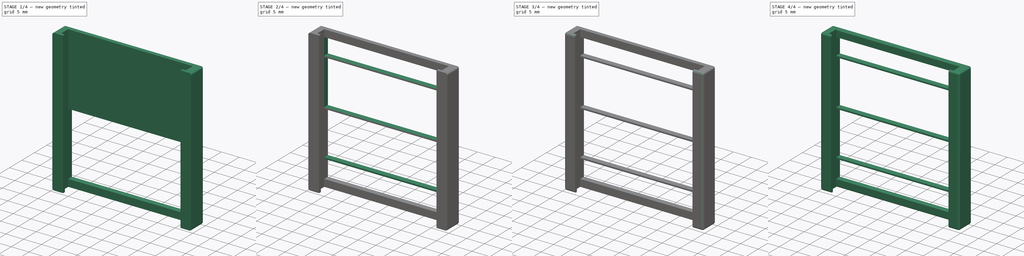
[diagram: build sequence overview — one tinted view per stage of 4, left to right]
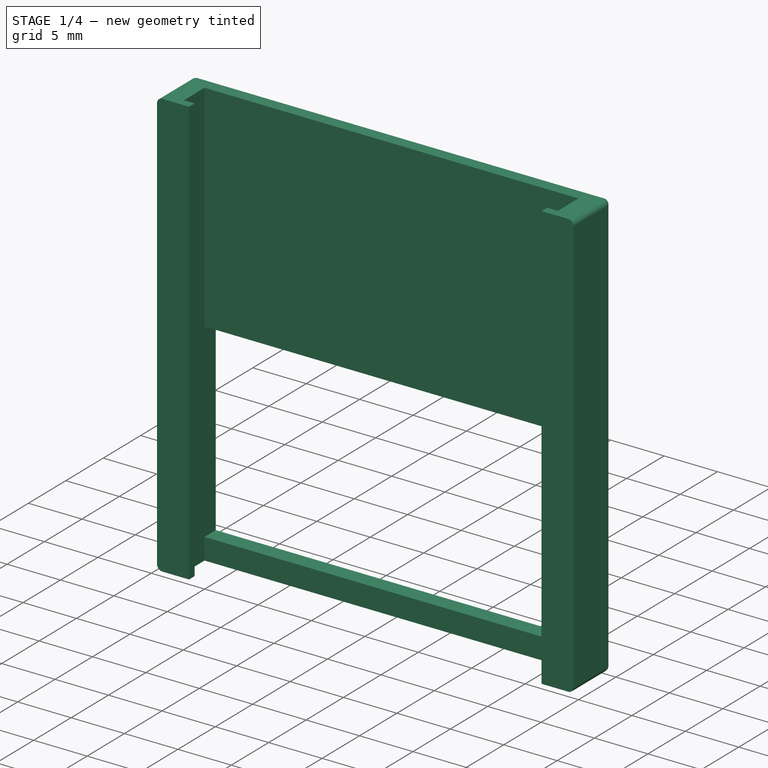
[diagram: stage 1 of 4 — iso view after this stage's code; geometry added in this stage tinted green]
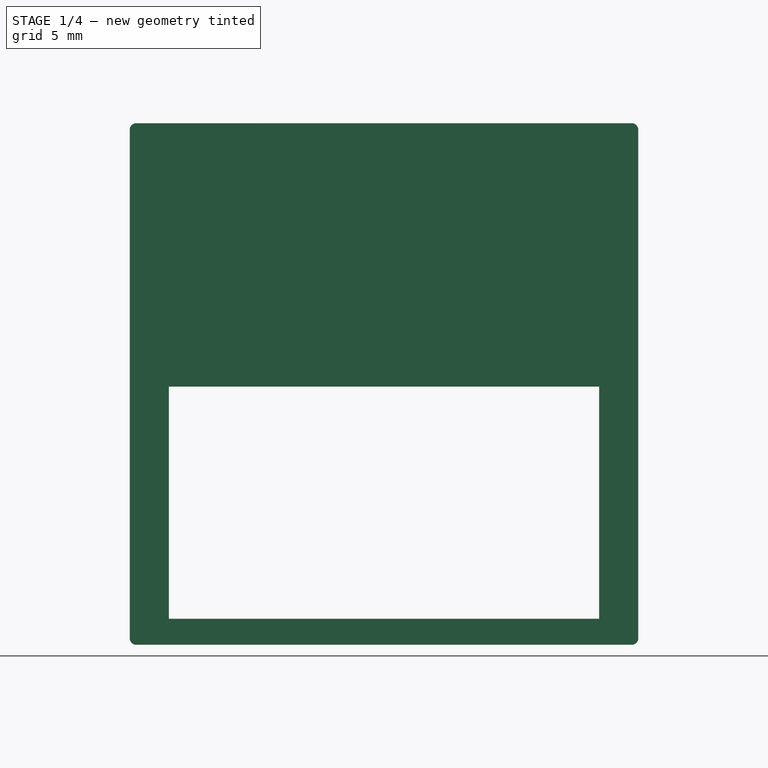
[diagram: stage 1 of 4 — front view after this stage's code; geometry added in this stage tinted green]
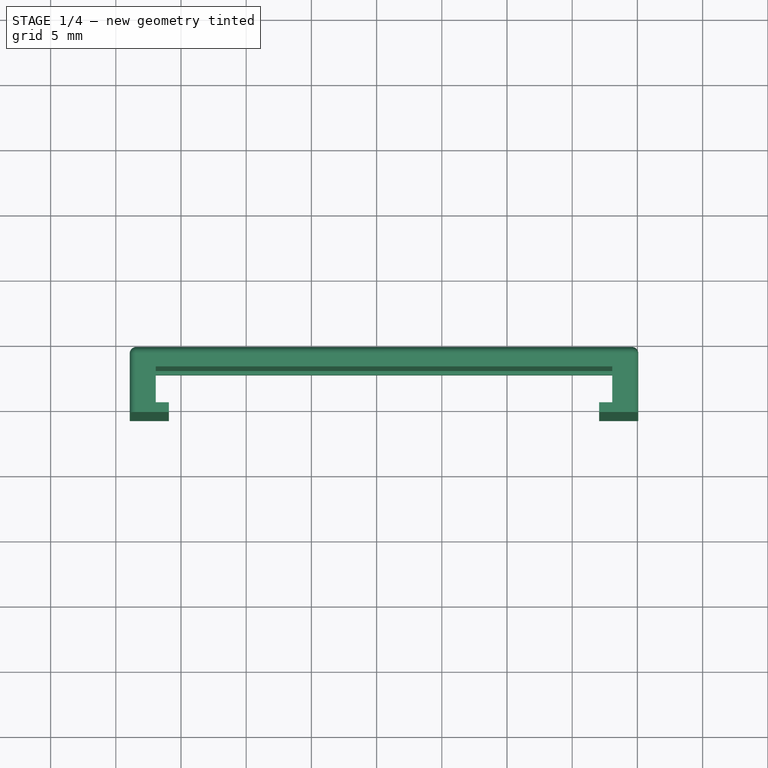
[diagram: stage 1 of 4 — top view after this stage's code; geometry added in this stage tinted green]
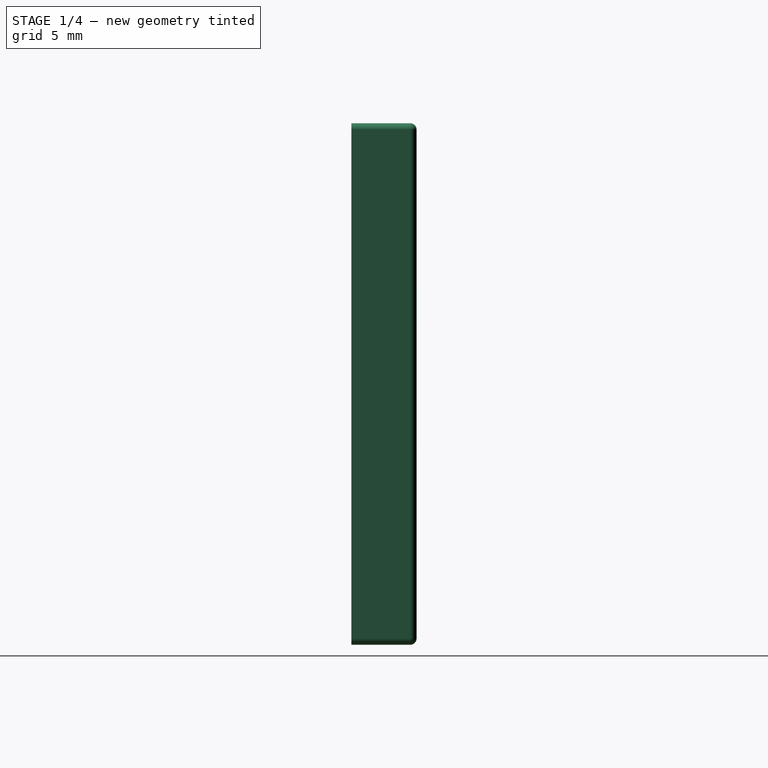
[diagram: stage 1 of 4 — right view after this stage's code; geometry added in this stage tinted green]
FCSTD DOCUMENT  (FreeCAD 1.1R)
Label: cursor
License: All rights reserved
LicenseURL: https://en.wikipedia.org/wiki/All_rights_reserved
objects: PartDesign::Chamfer×5, PartDesign::Fillet×2, PartDesign::SubtractiveBox×2, PartDesign::AdditiveBox×2, App::Point×1, Sketcher::SketchObject×1, PartDesign::Pad×1, PartDesign::Body×1
note: 39 computed .brp shape members not serialized (recipe doc carries the construction recipe); baked Part::Feature solids carry a one-line shape summary decoded from their .brp

FEATURE [App::Point] Origin003
  Role = Origin
FEATURE [Sketcher::SketchObject] Sketch001
  ArcFitTolerance = 1e-06
  AttachmentSupport = -> [Origin002]
  ExternalTypes = [0]
  FullyConstrained = false
  MakeInternals = false
  MapMode = 5
  sketch-geometry (12):
    g0: LineSegment StartX=-18.9329 StartY=4.25 StartZ=0 EndX=20.0671 EndY=4.25 EndZ=0
    g1: LineSegment StartX=20.0671 StartY=4.25 StartZ=0 EndX=20.0671 EndY=-0.75 EndZ=0
    g2: LineSegment StartX=20.0671 StartY=-0.75 StartZ=0 EndX=17.0671 EndY=-0.75 EndZ=0
    g3: LineSegment StartX=17.0671 StartY=-0.75 StartZ=0 EndX=17.0671 EndY=0 EndZ=0
    g4: LineSegment StartX=17.0671 StartY=0 StartZ=0 EndX=18.0671 EndY=0 EndZ=0
    g5: LineSegment StartX=18.0671 StartY=0 StartZ=0 EndX=18.0671 EndY=2.75 EndZ=0
    g6: LineSegment StartX=18.0671 StartY=2.75 StartZ=0 EndX=-16.9329 EndY=2.75 EndZ=0
    g7: LineSegment StartX=-16.9329 StartY=2.75 StartZ=0 EndX=-16.9329 EndY=0 EndZ=0
    g8: LineSegment StartX=-16.9329 StartY=0 StartZ=0 EndX=-15.9329 EndY=0 EndZ=0
    g9: LineSegment StartX=-15.9329 StartY=0 StartZ=0 EndX=-15.9329 EndY=-0.75 EndZ=0
    g10: LineSegment StartX=-15.9329 StartY=-0.75 StartZ=0 EndX=-18.9329 EndY=-0.75 EndZ=0
    g11: LineSegment StartX=-18.9329 StartY=-0.75 StartZ=0 EndX=-18.9329 EndY=4.25 EndZ=0
  constraints (35):
    c: Horizontal(g0)
    c: Coincident(g0,g1)
    c: Vertical(g1)
    c: Coincident(g1,g2)
    c: Horizontal(g2)
    c: Coincident(g2,g3)
    c: PointOnObject(g3,g-1)
    c: Vertical(g3)
    c: Coincident(g3,g4)
    c: PointOnObject(g4,g-1)
    c: Coincident(g4,g5)
    c: Vertical(g5)
    c: Coincident(g5,g6)
    c: Horizontal(g6)
    c: Coincident(g6,g7)
    c: PointOnObject(g7,g-1)
    c: Coincident(g7,g8)
    c: PointOnObject(g8,g-1)
    c: Coincident(g8,g9)
    c: Vertical(g9)
    c: Coincident(g9,g10)
    c: Horizontal(g10)
    c: Coincident(g10,g11)
    c: Coincident(g11,g0)
    c: Vertical(g11)
    c: DistanceX(g0,g0) = 39
    c: DistanceX(g6,g6) = 35
    c: Perpendicular(g6,g7)
    c: DistanceX(g9,g2) = 33
    c: Distance(g11,g7) = 2
    c: DistanceX(g2,g1) = 3
    c: DistanceY(g1,g0) = 5
    c: Distance(g6,g0) = 1.5
    c: DistanceY(g11,g11) = 5
    c: Distance(g9,g9) = 0.75
FEATURE [PartDesign::Pad] Pad001
  Direction = (0,0,1)
  Length = 40
  Length2 = 10
  Profile = -> Sketch001
  ReferenceAxis = -> Sketch001 [N_Axis]
  Refine = true
  Suppressed = false
  Type = 0
FEATURE [PartDesign::Fillet] Fillet
  Base = -> Pad001 [Edge2,Edge1,Edge3,Edge4,Vertex1,Edge35,Edge6,Edge7,Edge36]
  BaseFeature = -> Pad001
  Radius = 0.5
  Refine = true
  SupportTransform = false
  Suppressed = false
  UseAllEdges = false
  expr: Radius = 0.5 mm
FEATURE [PartDesign::SubtractiveBox] Box004
  AttacherType = Attacher::AttachEngine3D
  AttachmentOffset = pos=(0,0,2) rot=(0,0,1;0rad)
  AttachmentSupport = -> [Fillet]
  BaseFeature = -> Fillet
  Height = 17.8
  Length = 35
  MapMode = 1
  Placement = pos=(-16.9329,2.75,2) rot=(0,0,1;0rad)
  Refine = true
  Suppressed = false
  Width = 10
  expr: Height = 17.8 mm
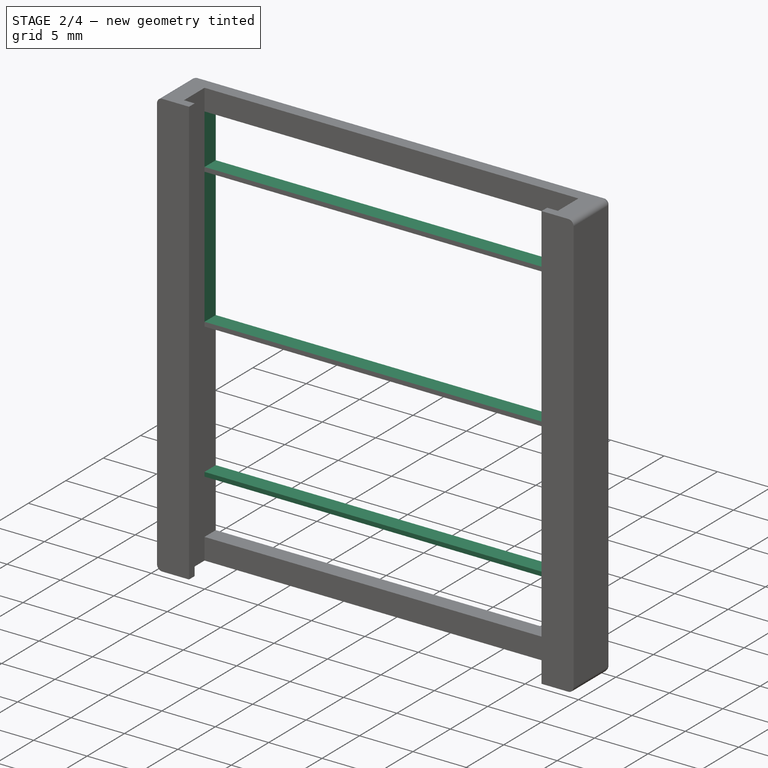
[diagram: stage 2 of 4 — iso view after this stage's code; geometry added in this stage tinted green]
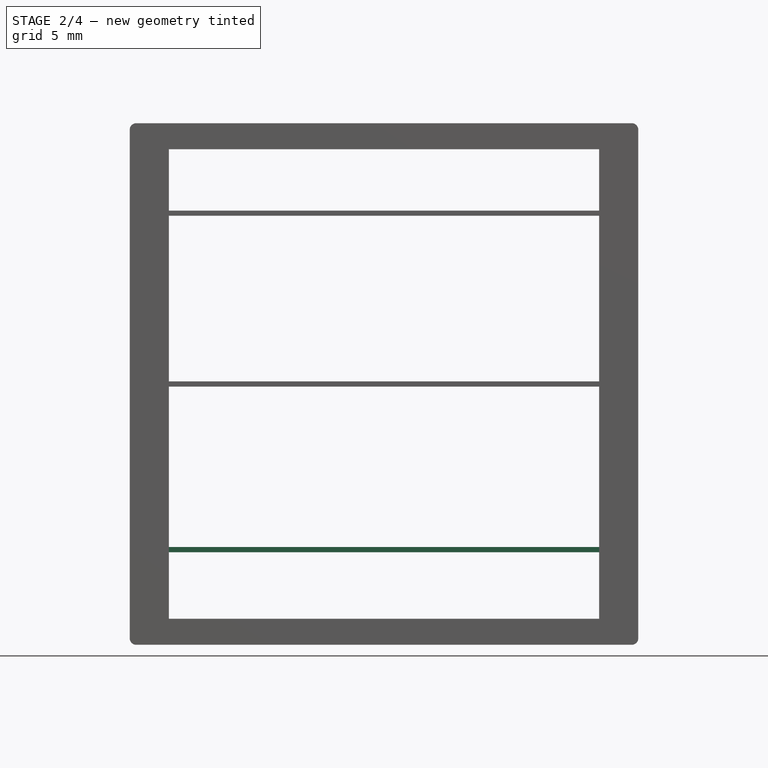
[diagram: stage 2 of 4 — front view after this stage's code; geometry added in this stage tinted green]
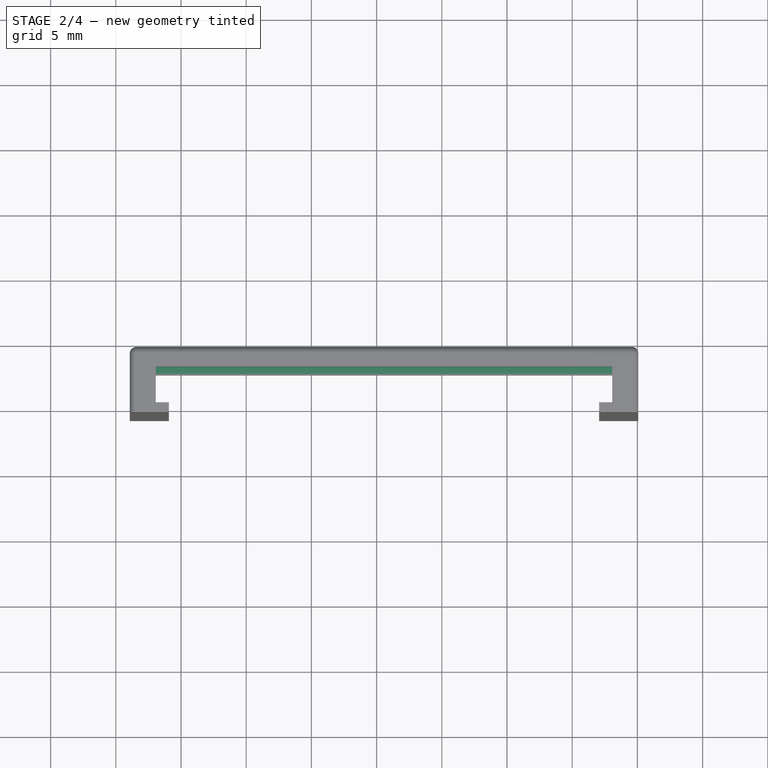
[diagram: stage 2 of 4 — top view after this stage's code; geometry added in this stage tinted green]
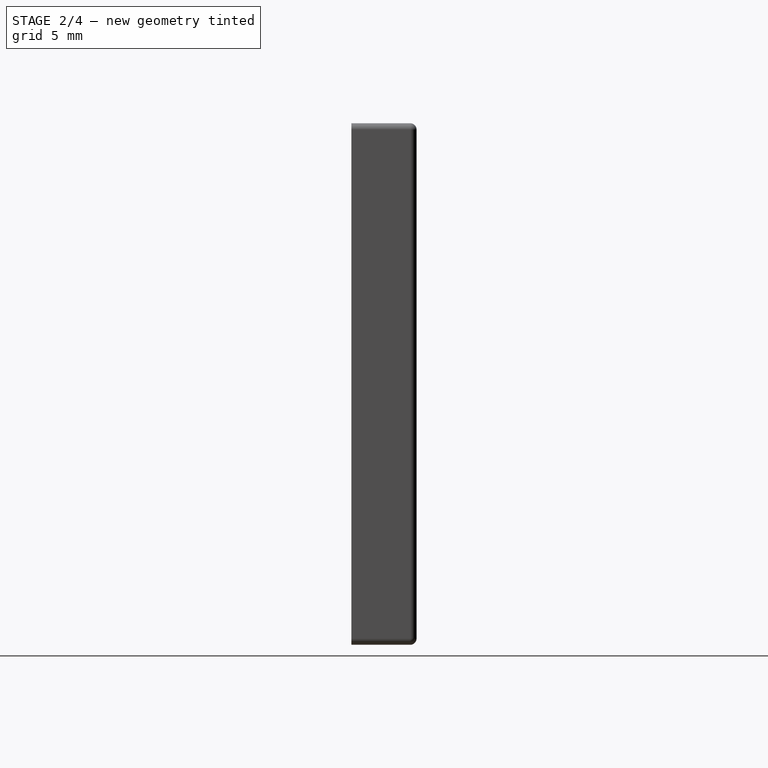
[diagram: stage 2 of 4 — right view after this stage's code; geometry added in this stage tinted green]
FEATURE [PartDesign::SubtractiveBox] Box005
  AttacherType = Attacher::AttachEngine3D
  AttachmentOffset = pos=(0,0,0.4) rot=(0,0,1;0rad)
  AttachmentSupport = -> [Box004]
  BaseFeature = -> Box004
  Height = 10
  Length = 35
  MapMode = 1
  Placement = pos=(18.0671,2.75,20.2) rot=(0,0.707107,0.707107;3.14159rad)
  Refine = true
  Suppressed = false
  Width = 17.8
  expr: .AttachmentOffset.Base.z = 0.4 mm
  expr: Width = 17.8 mm
FEATURE [PartDesign::AdditiveBox] Box006
  AttacherType = Attacher::AttachEngine3D
  AttachmentOffset = pos=(0,0,-12.7) rot=(0,0,1;0rad)
  AttachmentSupport = -> [Box005]
  BaseFeature = -> Box005
  Height = 0.4
  Length = 35
  MapMode = 1
  Placement = pos=(-16.9329,2.75,7.1) rot=(0,0,1;0rad)
  Refine = true
  Suppressed = false
  Width = 1.5
  expr: .AttachmentOffset.Base.z = -12.7 mm
  expr: Height = 0.4 mm
  expr: Width = 1.5 mm
FEATURE [PartDesign::AdditiveBox] Box007
  AttacherType = Attacher::AttachEngine3D
  AttachmentOffset = pos=(0,0,12.7) rot=(0,0,1;0rad)
  AttachmentSupport = -> [Box006]
  BaseFeature = -> Box006
  Height = 0.4
  Length = 35
  MapMode = 1
  Placement = pos=(-16.9329,2.75,32.9) rot=(0,0,1;0rad)
  Refine = true
  Suppressed = false
  Width = 1.5
  expr: .AttachmentOffset.Base.z = 12.7 mm
  expr: Height = 0.4 mm
  expr: Width = 1.5 mm
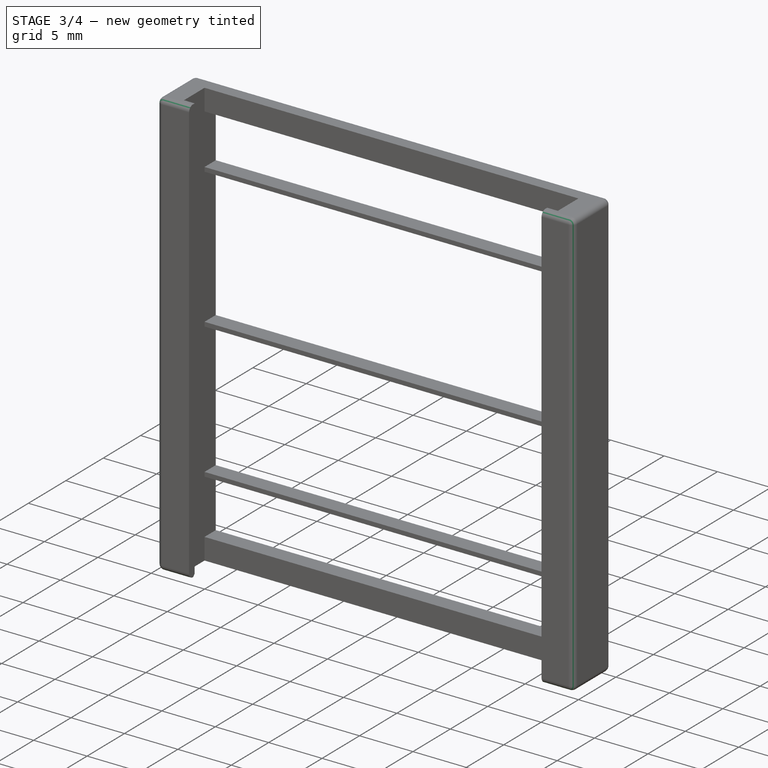
[diagram: stage 3 of 4 — iso view after this stage's code; geometry added in this stage tinted green]
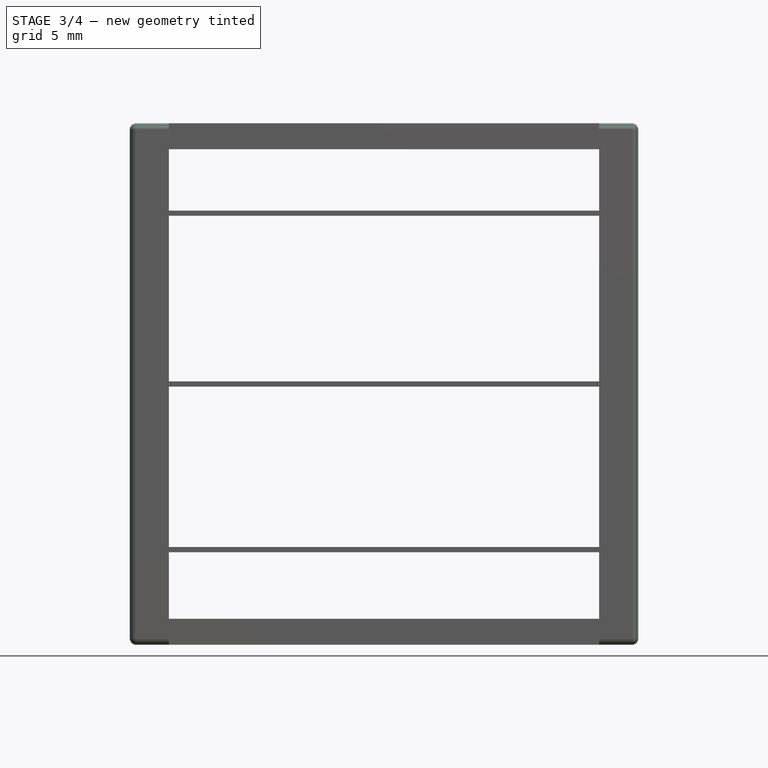
[diagram: stage 3 of 4 — front view after this stage's code; geometry added in this stage tinted green]
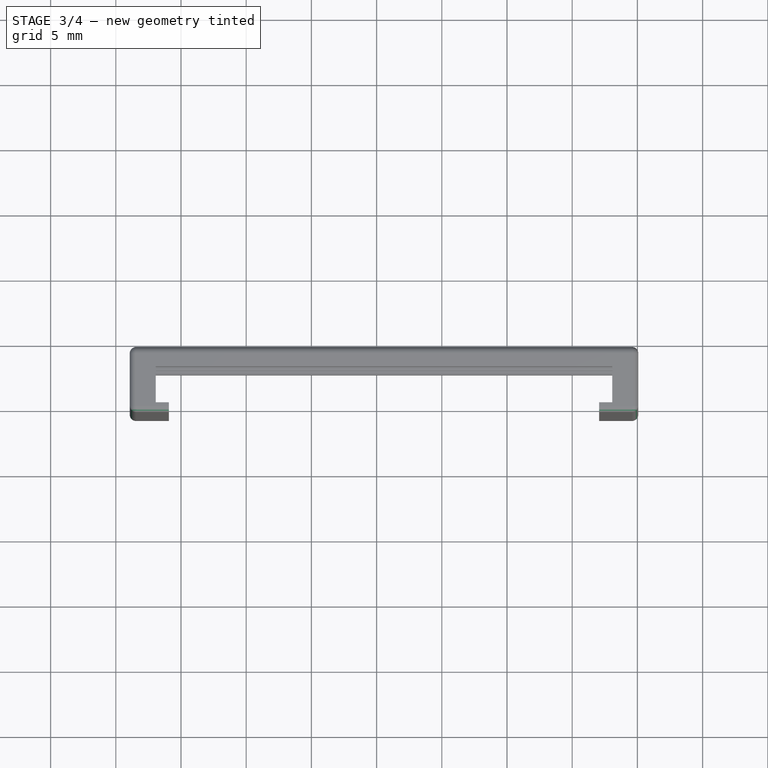
[diagram: stage 3 of 4 — top view after this stage's code; geometry added in this stage tinted green]
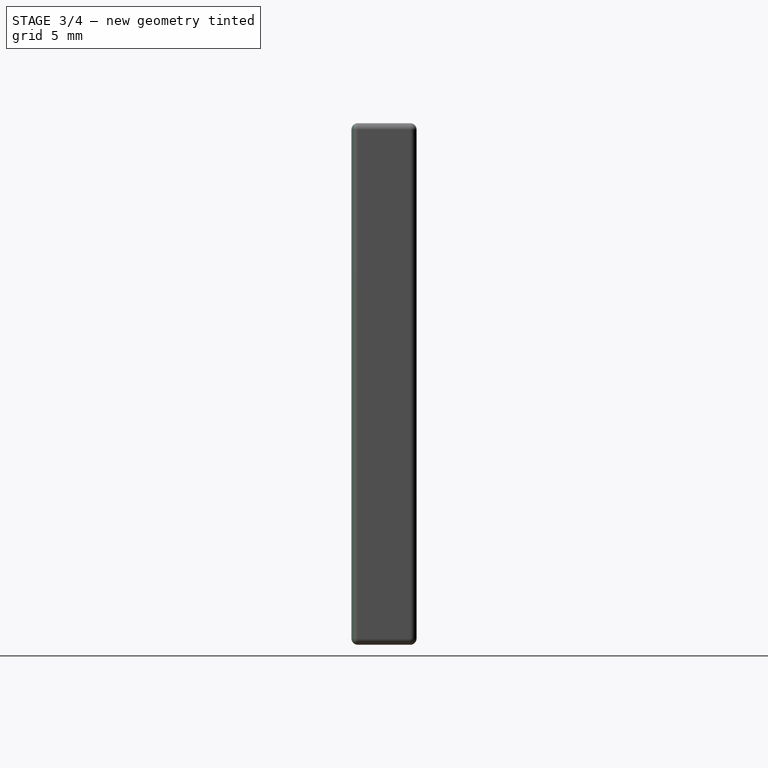
[diagram: stage 3 of 4 — right view after this stage's code; geometry added in this stage tinted green]
FEATURE [PartDesign::Fillet] Fillet001
  Base = -> Box007 [Edge35,Edge15,Edge33,Vertex23,Edge34,Edge36,Edge63,Edge62,Edge61,Edge21,Edge29]
  BaseFeature = -> Box007
  Placement = pos=(-16.9329,2.75,32.9) rot=(0,0,1;0rad)
  Radius = 0.5
  Refine = true
  SupportTransform = false
  Suppressed = false
  UseAllEdges = false
FEATURE [PartDesign::Chamfer] Chamfer
  Angle = 45
  Base = -> Fillet001 [Edge59]
  BaseFeature = -> Fillet001
  ChamferType = 0
  FlipDirection = false
  Placement = pos=(-16.9329,2.75,32.9) rot=(0,0,1;0rad)
  Refine = true
  Size = 0.2
  Size2 = 1
  SupportTransform = false
  Suppressed = false
  UseAllEdges = false
FEATURE [PartDesign::Chamfer] Chamfer001
  Angle = 45
  Base = -> Chamfer [Edge18]
  BaseFeature = -> Chamfer
  ChamferType = 0
  FlipDirection = false
  Placement = pos=(-16.9329,2.75,32.9) rot=(0,0,1;0rad)
  Refine = true
  Size = 0.2
  Size2 = 1
  SupportTransform = false
  Suppressed = false
  UseAllEdges = false
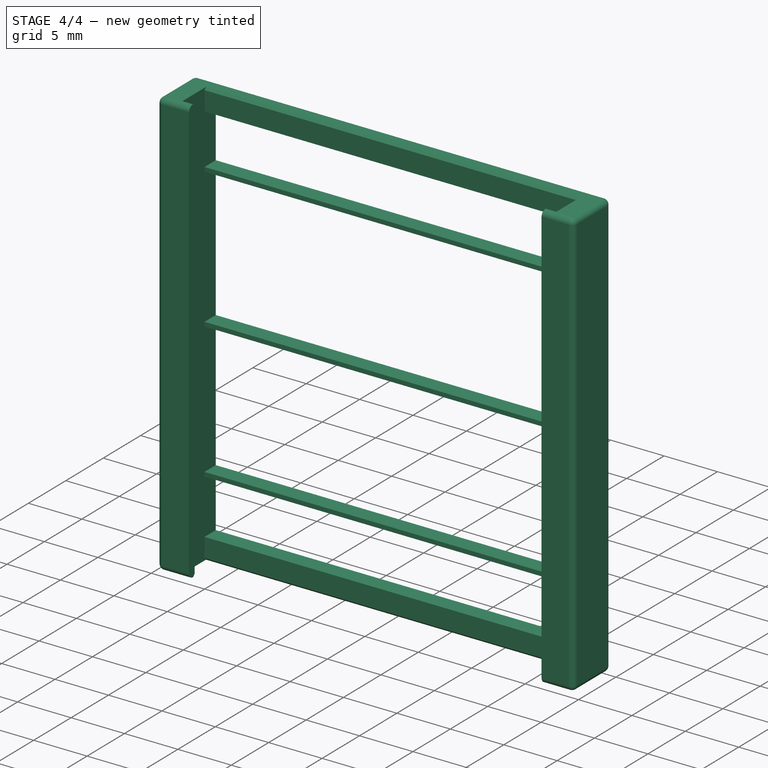
[diagram: stage 4 of 4 — iso view after this stage's code; geometry added in this stage tinted green]
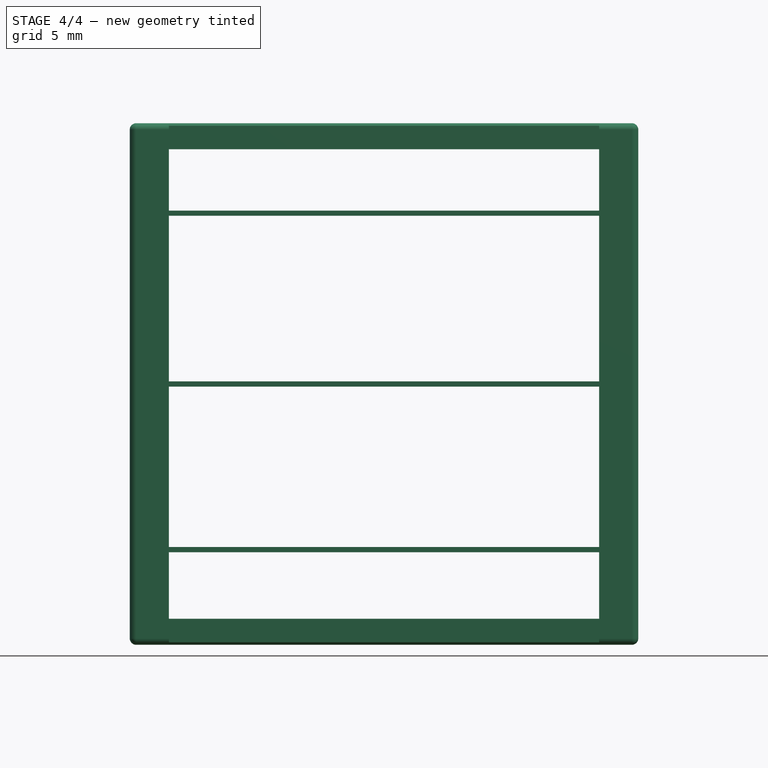
[diagram: stage 4 of 4 — front view after this stage's code; geometry added in this stage tinted green]
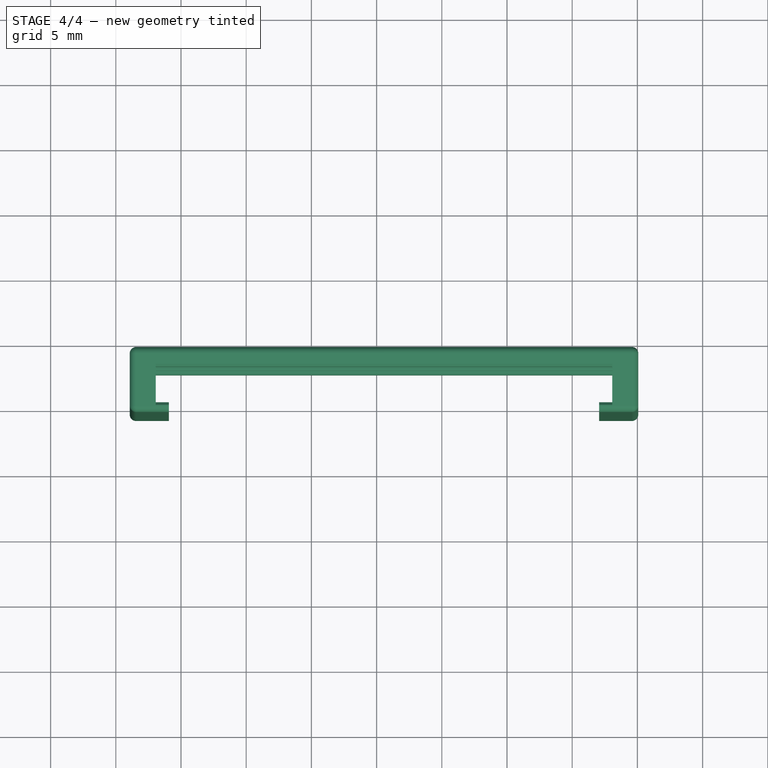
[diagram: stage 4 of 4 — top view after this stage's code; geometry added in this stage tinted green]
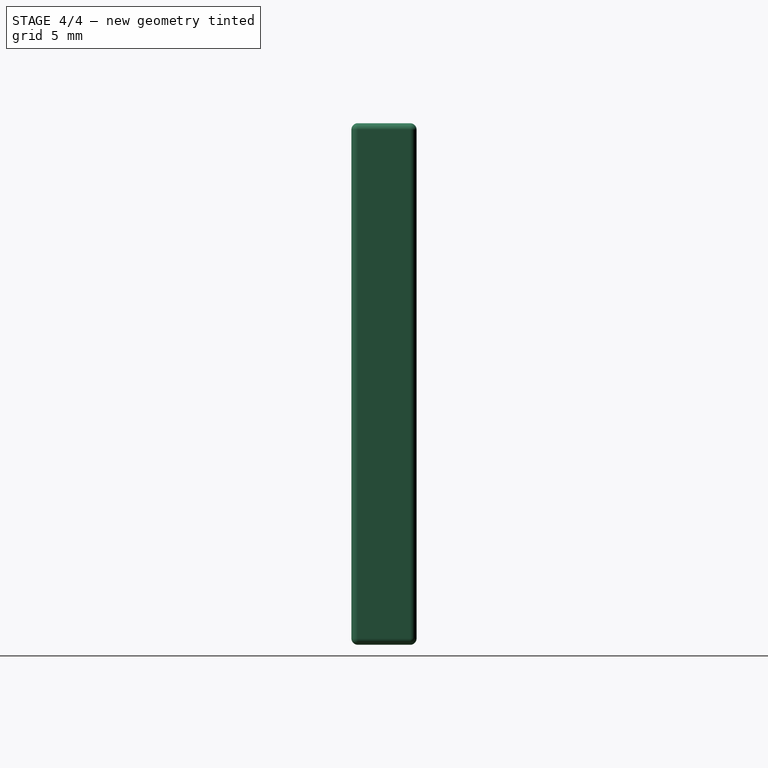
[diagram: stage 4 of 4 — right view after this stage's code; geometry added in this stage tinted green]
FEATURE [PartDesign::Chamfer] Chamfer002
  Angle = 45
  Base = -> Chamfer001 [Edge8]
  BaseFeature = -> Chamfer001
  ChamferType = 0
  FlipDirection = false
  Placement = pos=(-16.9329,2.75,32.9) rot=(0,0,1;0rad)
  Refine = true
  Size = 0.2
  Size2 = 1
  SupportTransform = false
  Suppressed = false
  UseAllEdges = false
FEATURE [PartDesign::Chamfer] Chamfer003
  Angle = 45
  Base = -> Chamfer002 [Edge107]
  BaseFeature = -> Chamfer002
  ChamferType = 0
  FlipDirection = false
  Placement = pos=(-16.9329,2.75,32.9) rot=(0,0,1;0rad)
  Refine = true
  Size = 0.2
  Size2 = 1
  SupportTransform = false
  Suppressed = false
  UseAllEdges = false
FEATURE [PartDesign::Chamfer] Chamfer004
  Angle = 45
  Base = -> Chamfer003 [Edge34,Edge39]
  BaseFeature = -> Chamfer003
  ChamferType = 0
  FlipDirection = false
  Placement = pos=(-16.9329,2.75,32.9) rot=(0,0,1;0rad)
  Refine = true
  Size = 0.2
  Size2 = 1
  SupportTransform = false
  Suppressed = false
  UseAllEdges = false
FEATURE [PartDesign::Body] Body001
  AllowCompound = false
  Group = -> [Sketch001,Pad001,Fillet,Box004,Box005,Box006,Box007,Fillet001,Chamfer,Chamfer001,Chamfer002,Chamfer003,Chamfer004]
  Origin = -> Origin002
  Tip = -> Chamfer004
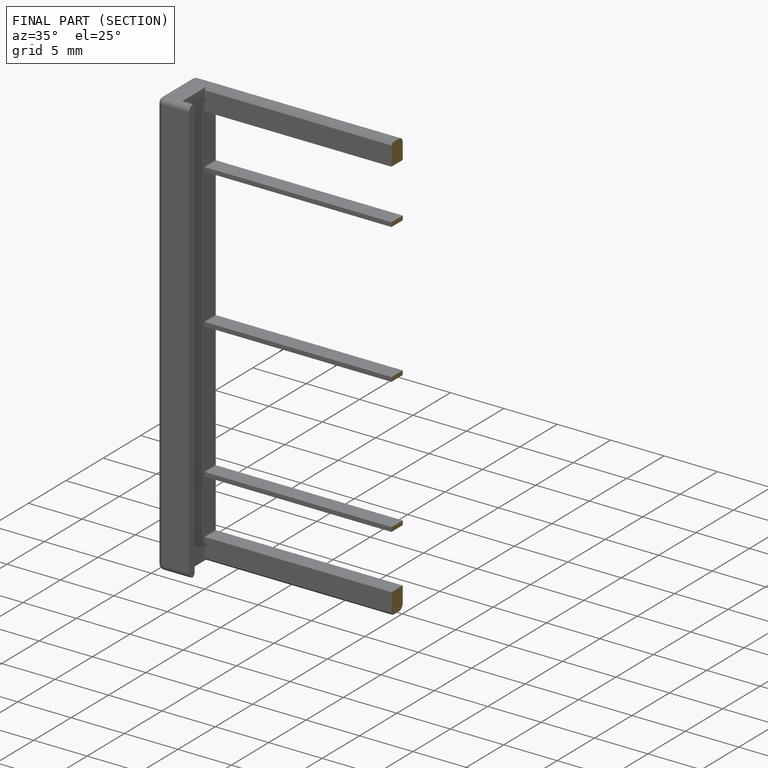
[diagram: finished part — half-section view (interior)]
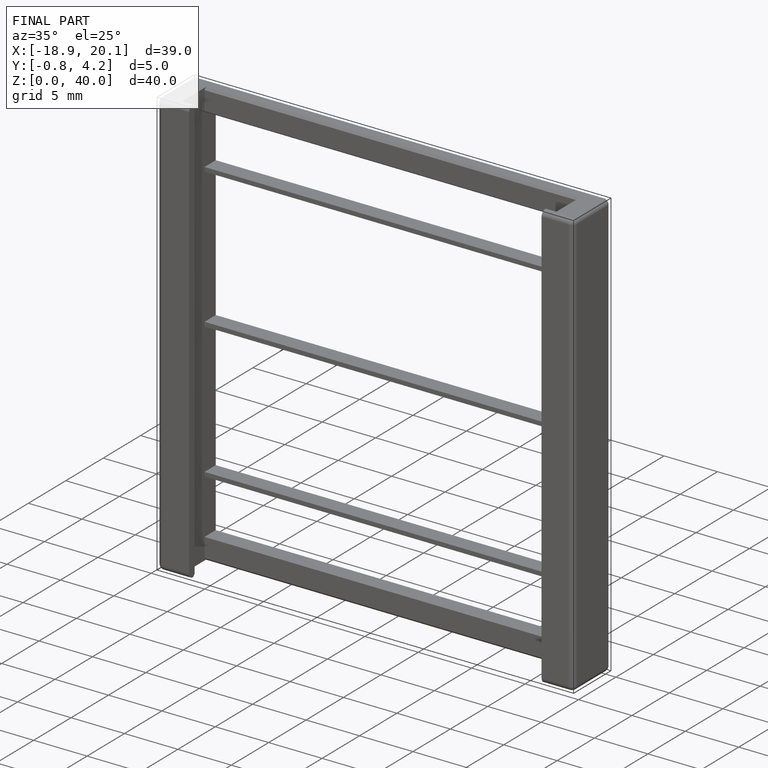
[diagram: finished part — iso view with bounding-box wireframe]
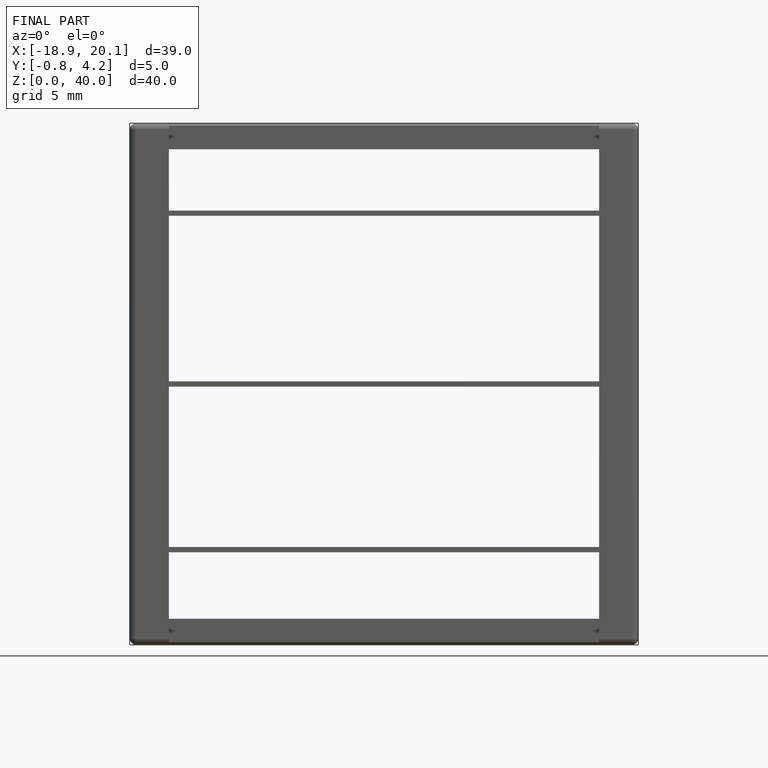
[diagram: finished part — front view with bounding-box wireframe]
